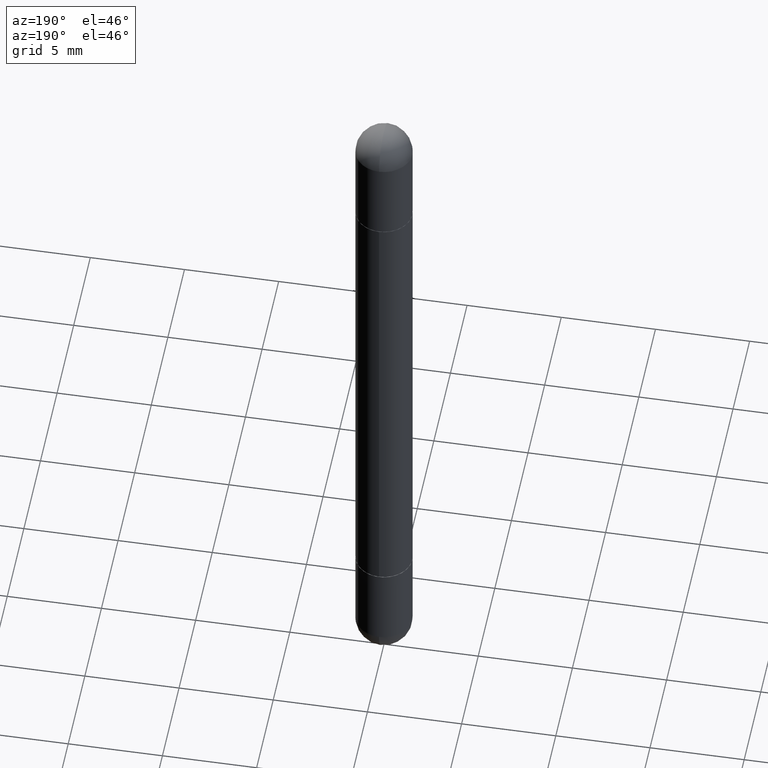
[diagram: clean part render]
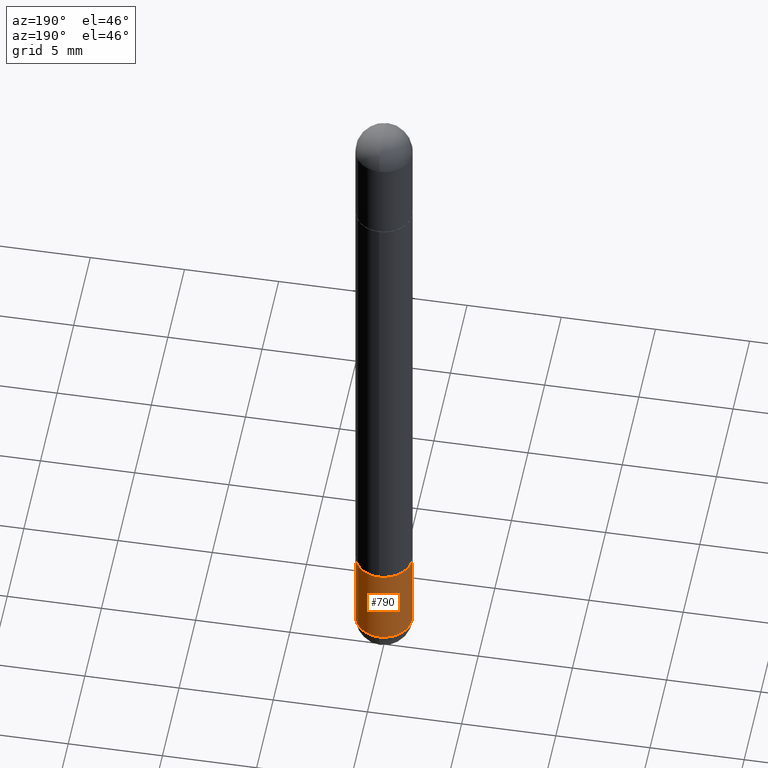
[diagram: same view with one face highlighted and labeled with its STEP entity id]
A machine part, auxiliary view. The second image highlights one B-rep face of the part: STEP entity #790.
In plain terms, the highlighted cylindrical surface (edge-blend (fillet) strip) has radius 1.4999 mm, axis along (-0, 0, 1).
Its self-contained STEP definition (entity closure, byte-faithful):
#2 = DIRECTION ( 'NONE',  ( -2.445468806185136597E-29, 3.491481338843145583E-15, 1.000000000000000000 ) ) ;
#13 = EDGE_CURVE ( 'NONE', #519, #155, #730, .T. ) ;
#71 = CARTESIAN_POINT ( 'NONE',  ( -0.05905000000000001914, -4.288599812930171320E-15, -1.437049999999999939 ) ) ;
#97 = CARTESIAN_POINT ( 'NONE',  ( 4.123439461174084467E-16, 0.05904999999999487742, -1.437050000000000161 ) ) ;
#103 = FACE_OUTER_BOUND ( 'NONE', #592, .T. ) ;
#133 = CARTESIAN_POINT ( 'NONE',  ( 3.514260947928350449E-29, -5.017433257984542594E-15, -1.437049999999999939 ) ) ;
#140 = ORIENTED_EDGE ( 'NONE', *, *, #345, .F. ) ;
#148 = VERTEX_POINT ( 'NONE', #224 ) ;
#155 = VERTEX_POINT ( 'NONE', #466 ) ;
#157 = CARTESIAN_POINT ( 'NONE',  ( 3.514260947928350449E-29, -5.017433257984542594E-15, -1.437049999999999939 ) ) ;
#159 = DIRECTION ( 'NONE',  ( -2.445468806185136877E-29, 3.491481338843145188E-15, 1.000000000000000000 ) ) ;
#208 = ORIENTED_EDGE ( 'NONE', *, *, #13, .T. ) ;
#224 = CARTESIAN_POINT ( 'NONE',  ( 0.05905000000000001914, -4.811261284925853162E-15, -1.259899999999999798 ) ) ;
#253 = VECTOR ( 'NONE', #439, 39.37007874015748143 ) ;
#323 = CIRCLE ( 'NONE', #486, 0.05905000000000001914 ) ;
#326 = CARTESIAN_POINT ( 'NONE',  ( 3.081046148912652946E-29, -4.398917338808479031E-15, -1.259899999999999798 ) ) ;
#336 = VERTEX_POINT ( 'NONE', #494 ) ;
#345 = EDGE_CURVE ( 'NONE', #336, #148, #743, .T. ) ;
#348 = DIRECTION ( 'NONE',  ( 1.000000000000000000, -6.982962677686270655E-15, 0.000000000000000000 ) ) ;
#358 = ORIENTED_EDGE ( 'NONE', *, *, #664, .T. ) ;
#380 = DIRECTION ( 'NONE',  ( 1.000000000000000000, -6.982962677686270655E-15, 0.000000000000000000 ) ) ;
#430 = EDGE_CURVE ( 'NONE', #148, #155, #474, .T. ) ;
#439 = DIRECTION ( 'NONE',  ( -2.445468806185136877E-29, 3.491481338843145188E-15, 1.000000000000000000 ) ) ;
#454 = ORIENTED_EDGE ( 'NONE', *, *, #462, .T. ) ;
#457 = DIRECTION ( 'NONE',  ( -2.445468806185136597E-29, 3.491481338843145583E-15, 1.000000000000000000 ) ) ;
#462 = EDGE_CURVE ( 'NONE', #752, #519, #323, .T. ) ;
#466 = CARTESIAN_POINT ( 'NONE',  ( -0.05905000000000001914, -4.288599812930171320E-15, -1.259899999999999798 ) ) ;
#474 = CIRCLE ( 'NONE', #734, 0.05905000000000001914 ) ;
#486 = AXIS2_PLACEMENT_3D ( 'NONE', #133, #457, #380 ) ;
#492 = DIRECTION ( 'NONE',  ( -2.445468806185136597E-29, 3.491481338843145583E-15, 1.000000000000000000 ) ) ;
#494 = CARTESIAN_POINT ( 'NONE',  ( 0.05905000000000001914, -5.120519244513884944E-15, -1.437049999999999939 ) ) ;
#519 = VERTEX_POINT ( 'NONE', #71 ) ;
#531 = CIRCLE ( 'NONE', #632, 0.05905000000000001914 ) ;
#544 = CYLINDRICAL_SURFACE ( 'NONE', #758, 0.05905000000000001914 ) ;
#550 = DIRECTION ( 'NONE',  ( 1.000000000000000000, -6.982962677686266711E-15, 4.876176775795935793E-29 ) ) ;
#559 = CARTESIAN_POINT ( 'NONE',  ( 0.05905000000000001914, -4.123439461173741806E-16, 2.879382386107500921E-30 ) ) ;
#592 = EDGE_LOOP ( 'NONE', ( #454, #208, #605, #140, #358 ) ) ;
#605 = ORIENTED_EDGE ( 'NONE', *, *, #430, .F. ) ;
#632 = AXIS2_PLACEMENT_3D ( 'NONE', #157, #716, #348 ) ;
#664 = EDGE_CURVE ( 'NONE', #336, #752, #531, .T. ) ;
#716 = DIRECTION ( 'NONE',  ( -2.445468806185136597E-29, 3.491481338843145583E-15, 1.000000000000000000 ) ) ;
#720 = VECTOR ( 'NONE', #159, 39.37007874015748143 ) ;
#730 = LINE ( 'NONE', #740, #720 ) ;
#734 = AXIS2_PLACEMENT_3D ( 'NONE', #326, #2, #809 ) ;
#740 = CARTESIAN_POINT ( 'NONE',  ( -0.05905000000000001914, 4.195754854663392958E-16, -2.904631170795522943E-30 ) ) ;
#743 = LINE ( 'NONE', #559, #253 ) ;
#752 = VERTEX_POINT ( 'NONE', #97 ) ;
#758 = AXIS2_PLACEMENT_3D ( 'NONE', #797, #492, #550 ) ;
#790 = ADVANCED_FACE ( 'NONE', ( #103 ), #544, .T. ) ;
#797 = CARTESIAN_POINT ( 'NONE',  ( 0.000000000000000000, 0.000000000000000000, 0.000000000000000000 ) ) ;
#809 = DIRECTION ( 'NONE',  ( 1.000000000000000000, -6.982962677686270655E-15, 0.000000000000000000 ) ) ;